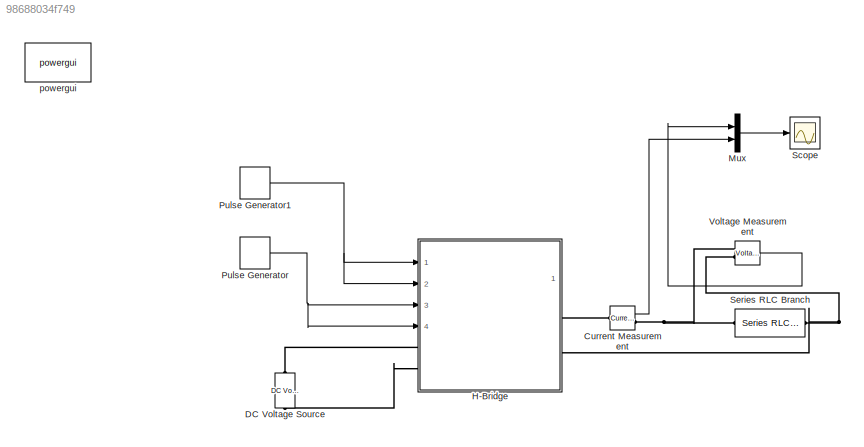
MODEL slx_98688034f749
KIND model
BLOCK [Reference] Current Measurement  REF=powerlib/Measurements/Current Measurement
  OutputType = Complex
  PSBequivalent = 0
  PhasorSimulation = off
  Ports = [0, 1, 0, 0, 0, 1, 1]
  SourceBlock = powerlib/Measurements/Current Measurement
  SourceType = Current Measurement
  UserDataPersistent = on
BLOCK [Reference] DC Voltage Source  REF=powerlib/Electrical
Sources/DC Voltage Source
  Amplitude = 100
  Measurements = None
  Ports = [0, 0, 0, 0, 0, 1, 1]
  SourceBlock = powerlib/Electrical\nSources/DC Voltage Source
  SourceType = DC Voltage Source
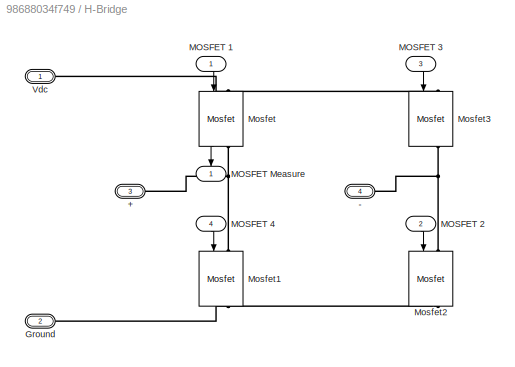
BLOCK [SubSystem] H-Bridge 
  Ports = [4, 1, 0, 0, 0, 2, 2]
  RequestExecContextInheritance = off
BLOCK [PMIOPort] H-Bridge /+
  Port = 3
  Side = Right
BLOCK [PMIOPort] H-Bridge /-
  Port = 4
  Side = Right
BLOCK [PMIOPort] H-Bridge /Ground
  Port = 2
  Side = Left
BLOCK [Inport] H-Bridge /MOSFET 1
  IconDisplay = Port number
BLOCK [Inport] H-Bridge /MOSFET 2
  IconDisplay = Port number
  Port = 2
BLOCK [Inport] H-Bridge /MOSFET 3
  IconDisplay = Port number
  Port = 3
BLOCK [Inport] H-Bridge /MOSFET 4
  IconDisplay = Port number
  Port = 4
BLOCK [Outport] H-Bridge /MOSFET Measure
  IconDisplay = Port number
BLOCK [Reference] H-Bridge /Mosfet  REF=powerlib/Power
Electronics/Mosfet
  Cs = inf
  IC = 0
  Lon = 0
  Measurements = on
  Ports = [1, 1, 0, 0, 0, 1, 1]
  Rd = 0.01
  Ron = 0.1
  Rs = 1e5
  SourceBlock = powerlib/Power\nElectronics/Mosfet
  SourceType = Mosfet
  Vfd = 0
BLOCK [Reference] H-Bridge /Mosfet1  REF=powerlib/Power
Electronics/Mosfet
  Cs = inf
  IC = 0
  Lon = 0
  Measurements = on
  Ports = [1, 1, 0, 0, 0, 1, 1]
  Rd = 0.01
  Ron = 0.1
  Rs = 1e5
  SourceBlock = powerlib/Power\nElectronics/Mosfet
  SourceType = Mosfet
  Vfd = 0
BLOCK [Reference] H-Bridge /Mosfet2  REF=powerlib/Power
Electronics/Mosfet
  Cs = inf
  IC = 0
  Lon = 0
  Measurements = on
  Ports = [1, 1, 0, 0, 0, 1, 1]
  Rd = 0.01
  Ron = 0.1
  Rs = 1e5
  SourceBlock = powerlib/Power\nElectronics/Mosfet
  SourceType = Mosfet
  Vfd = 0
BLOCK [Reference] H-Bridge /Mosfet3  REF=powerlib/Power
Electronics/Mosfet
  Cs = inf
  IC = 0
  Lon = 0
  Measurements = on
  Ports = [1, 1, 0, 0, 0, 1, 1]
  Rd = 0.01
  Ron = 0.1
  Rs = 1e5
  SourceBlock = powerlib/Power\nElectronics/Mosfet
  SourceType = Mosfet
  Vfd = 0
BLOCK [PMIOPort] H-Bridge /Vdc
  Port = 1
  Side = Left
BLOCK [Mux] Mux
  DisplayOption = bar
  Inputs = 2
  Ports = [2, 1]
BLOCK [DiscretePulseGenerator] Pulse Generator
  Period = 20e-3
  PhaseDelay = 10e-3
  Ports = [0, 1]
  PulseType = Time based
  PulseWidth = 50
BLOCK [DiscretePulseGenerator] Pulse Generator1
  Period = 20e-3
  Ports = [0, 1]
  PulseType = Time based
  PulseWidth = 50
BLOCK [Scope] Scope
  Floating = off
  NumInputPorts = 1
  Ports = [1]
  ShowLegends = off
  YMax = 200
  YMin = -200
  ZoomMode = xonly
BLOCK [Reference] Series RLC Branch  REF=powerlib/Elements/Series RLC Branch
  BranchType = RL
  Capacitance = 1e-6
  Inductance = 5e-3
  InitialCurrent = 0
  InitialVoltage = 0
  LConnTagsString = __new0
  Measurements = None
  Ports = [0, 0, 0, 0, 0, 1, 1]
  RConnTagsString = __new0
  Resistance = 1
  SetiL0 = off
  Setx0 = off
  SourceBlock = powerlib/Elements/Series RLC Branch
  SourceType = Series RLC Branch
BLOCK [Reference] Voltage Measurement  REF=powerlib/Measurements/Voltage Measurement
  OutputType = Complex
  PSBequivalent = 0
  PhasorSimulation = off
  Ports = [0, 1, 0, 0, 0, 2]
  SourceBlock = powerlib/Measurements/Voltage Measurement
  SourceType = Voltage Measurement
  UserDataPersistent = on
BLOCK [Reference] powergui  REF=powerlib/powergui
  DisableRonSwitches = off
  DisableSnubberDevices = off
  DisableVfSwitches = off
  DisplayEquations = off
  DisplayStyle = 1
  EnableUseOfTLC = off
  ErrMax = 1e-4
  Frange = [0:2:500]
  FreqAxis = off
  FunctionMessages = off
  HookPort = off
  Interpol = off
  Iterations = 50
  MaxFrequency = 1000
  Pbase = 100e6
  Ports = []
  Priority = 1
  ResistiveCurrentMeasurement = off
  RestoreLinks = warning
  RmsSteady = 1
  SPID = off
  SampleTime = 50e-6
  ShowGrid = off
  SolverType = Tustin
  SourceBlock = powerlib/powergui
  SourceType = PSB option menu block
  StartTime = 0.0
  SwTol = 0
  Ts = 0
  UnitsV = kV
  UnitsW = MW
  UserDataPersistent = on
  Xlog = on
  Ylog = off
  ZoomFFT = off
  cycles = 1
  display = off
  echomessages = off
  frequency = 60
  frequencyindice = 0
  frequencyindicesteady = 1
  fundamental = 60
  methode = off
  save = off
  structure = 0
  variable = ZData
  x0status = blocks
LINE Current Measurement:1 -> Mux:2
LINE H-Bridge /MOSFET 1:1 -> H-Bridge /Mosfet:1
LINE H-Bridge /MOSFET 2:1 -> H-Bridge /Mosfet2:1
LINE H-Bridge /MOSFET 3:1 -> H-Bridge /Mosfet3:1
LINE H-Bridge /MOSFET 4:1 -> H-Bridge /Mosfet1:1
LINE H-Bridge /Mosfet:1 -> H-Bridge /MOSFET Measure:1
LINE Mux:1 -> Scope:1
NET Pulse Generator1:1 -> H-Bridge :1, H-Bridge :2
NET Pulse Generator:1 -> H-Bridge :3, H-Bridge :4
LINE Voltage Measurement:1 -> Mux:1
PLINE Current Measurement:LConn1 -- H-Bridge :RConn1
PNET net1: Current Measurement:RConn1 -- Series RLC Branch:LConn1 -- Voltage Measurement:LConn1
PLINE DC Voltage Source:LConn1 -- H-Bridge :LConn2
PLINE DC Voltage Source:RConn1 -- H-Bridge :LConn1
PNET net2: H-Bridge /+:RConn1 -- H-Bridge /Mosfet1:LConn1 -- H-Bridge /Mosfet:RConn1
PNET net3: H-Bridge /-:RConn1 -- H-Bridge /Mosfet2:LConn1 -- H-Bridge /Mosfet3:RConn1
PNET net4: H-Bridge /Ground:RConn1 -- H-Bridge /Mosfet1:RConn1 -- H-Bridge /Mosfet2:RConn1
PNET net5: H-Bridge /Mosfet3:LConn1 -- H-Bridge /Mosfet:LConn1 -- H-Bridge /Vdc:RConn1
PNET net6: H-Bridge :RConn2 -- Series RLC Branch:RConn1 -- Voltage Measurement:LConn2
note: NET lines group one-source signal fan-out (src -> all destinations, sorted); 1:1 wires keep LINE; PNET lines group multi-terminal physical nets as a canonical sorted terminal list (undirected conserving connections); 2-terminal nets keep the pairwise PLINE form
